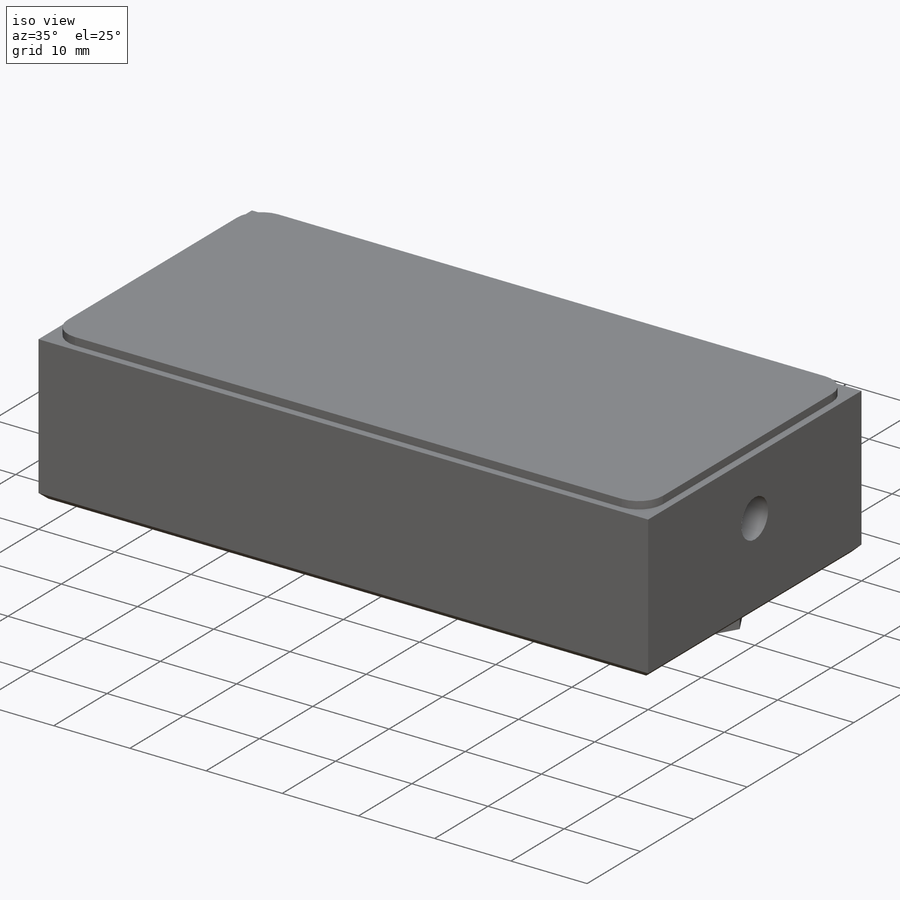
[diagram: iso view]
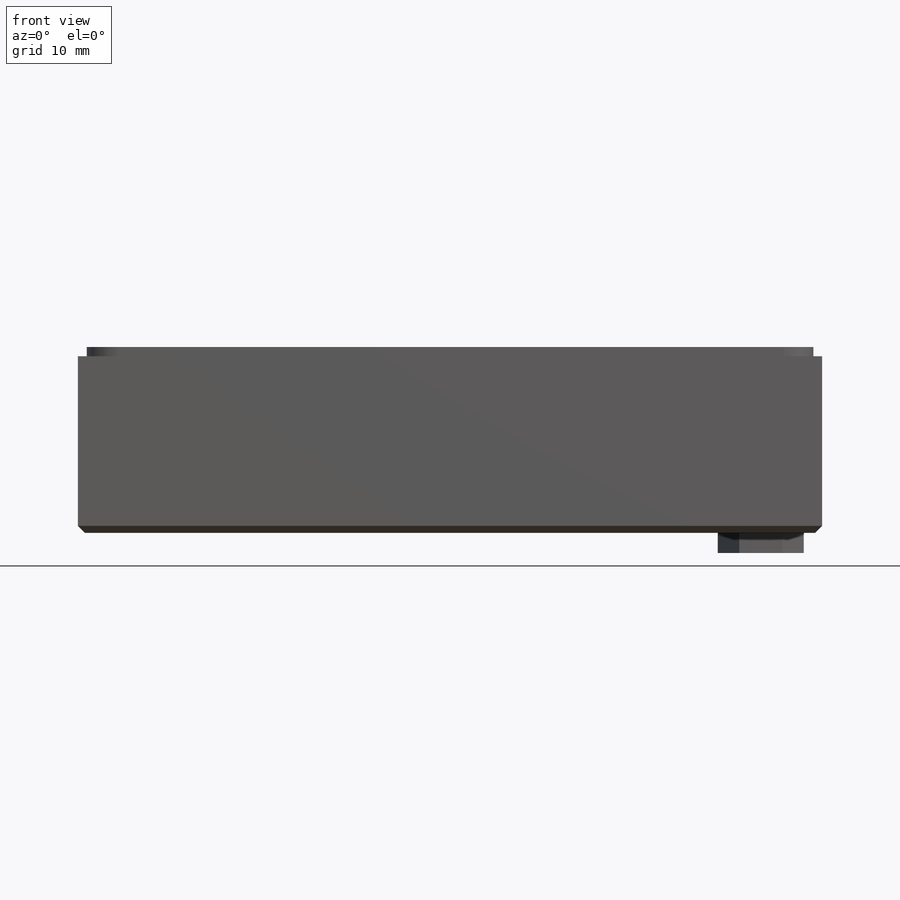
[diagram: front view]
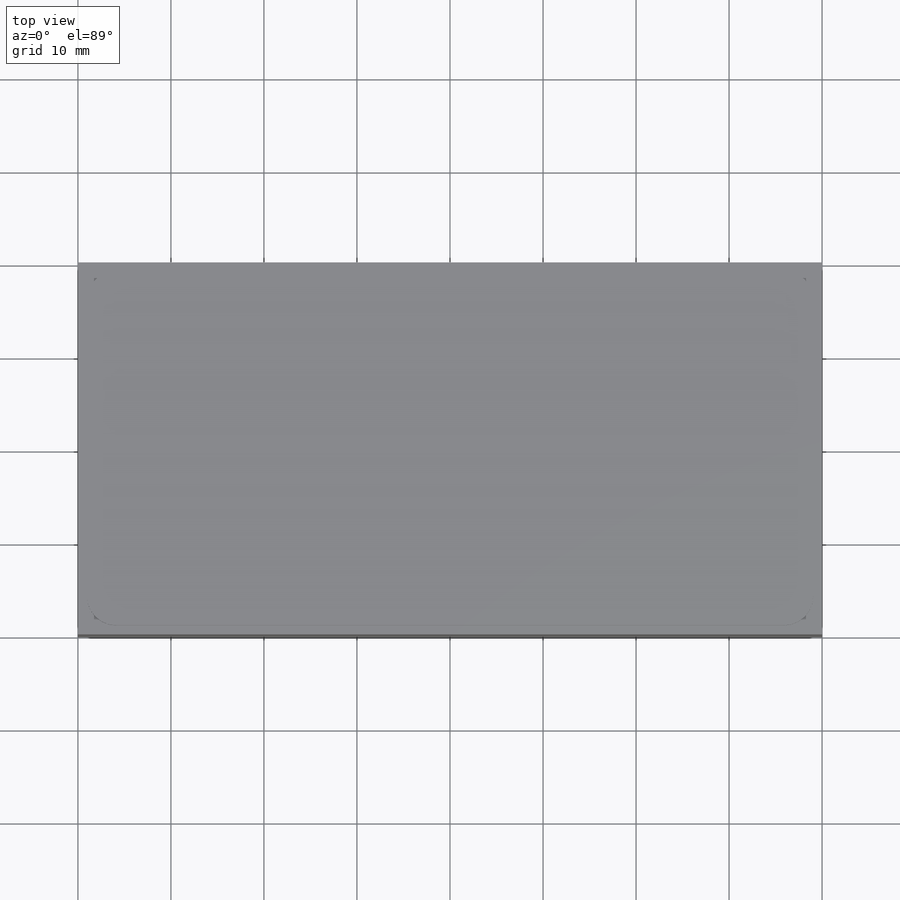
[diagram: top view]
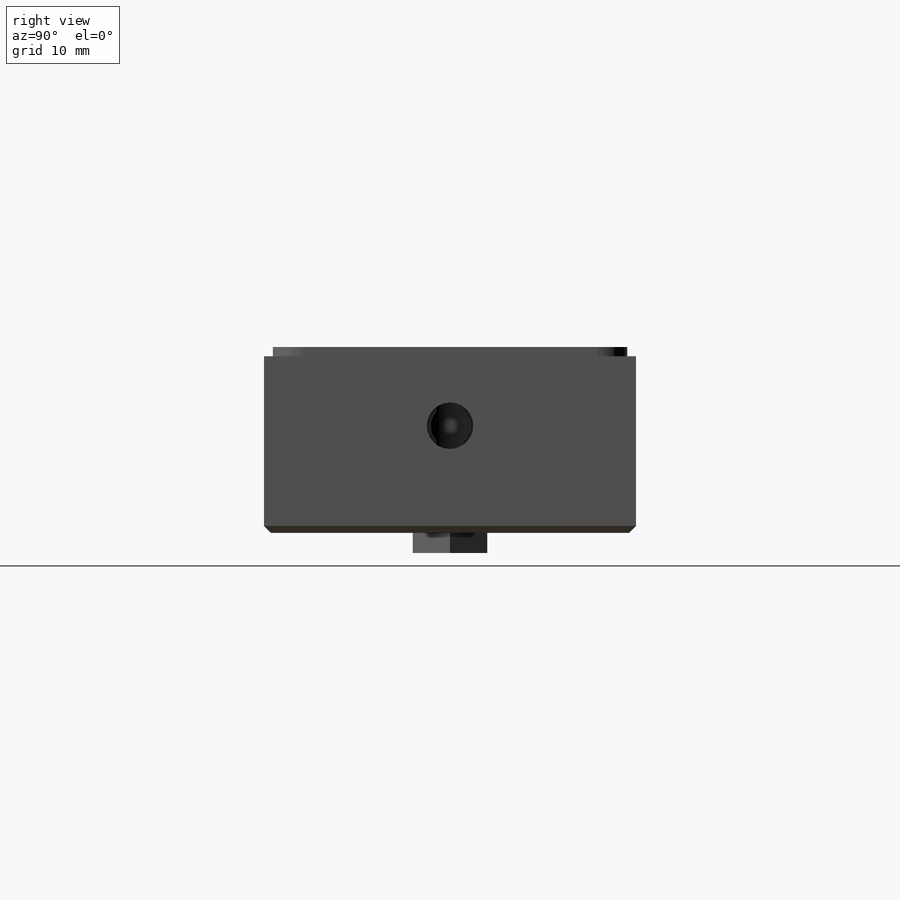
[diagram: right view]
SOLIDWORKS PART (.sldprt)
format: sldprt  version: not decoded by parser v0  size: 436,224 bytes
history: native  units: mm
features: sketch x16, hole x6, extrude x3, material x1, plane x1, cut_revolve x1, pattern_circular x1, chamfer x1 (+15 scaffold rows collapsed)
feature tree (45):
  scaffold x15  (default folders/planes/origin — collapsed)
  material  "6061 Alloy"
  sketch  "Sketch1"  dims[D1=80.0mm D2=40.0mm]
  extrude  "Extrude1"  Depth=18.9992mm
  sketch  "Sketch2"  dims[D5=3.175mm D1=38.1mm D2=78.105mm D3=0.9525mm D4=0.9525mm]
  hole  "1/8 (0.125) Diameter Hole1"  Diameter=3.175mm Depth=6.35mm
  sketch  "Sketch5"  dims[c1.D1=20.0152mm c1.D2=19.9898mm c2.D1=60.0mm]
  sketch  "Sketch4"  dims[hole-wizard template sketch: 47 standard entries collapsed; hole parameters kept: c15.Hole Depth=6.35mm c15.D3=~14.816244mm c15.Drill Angle=118.0deg]
  hole  "M3x0.5 Tapped Hole1"  Diameter=2.5mm Depth=8.849995mm
  sketch  "Sketch7"  dims[D1=20.0mm]
  sketch  "Sketch6"  dims[hole-wizard template sketch: 29 standard entries collapsed; hole parameters kept: c8.Tap Drill Depth=~8.849995mm c8.Thread Major Dia.=3.0mm c8.Thread Depth=6.35mm c8.D5=~14.816244mm c8.Drill Angle=118.0deg]
  hole  "M5x0.8 Tapped Hole1"  Diameter=4.2mm Depth=18.9992mm
  sketch  "Sketch9"  dims[D1=6.6mm]
  sketch  "Sketch8"  dims[hole-wizard template sketch: 41 standard entries collapsed; hole parameters kept: c12.Thru Tap Drill Dia.=4.2mm c12.Thru Tap Drill Depth=18.9992mm c12.Thread Major Dia.=5.0mm c12.Thread Depth=5.08mm]
  hole  "3/16 (0.1875) Diameter Hole1"  Diameter=4.7625mm Depth=6.2484mm
  sketch  "Sketch11"
  sketch  "Sketch10"  dims[hole-wizard template sketch: 47 standard entries collapsed; hole parameters kept: c15.Hole Depth=6.2484mm c15.D3=~14.816244mm c15.Drill Angle=180.0deg]
  plane  "Plane1"  Offset=0.508mm
  sketch  "Sketch12"  dims[D1=13.0048mm]
  cut_revolve  "Cut-Revolve1"  Angle=180deg
  hole  "M5x0.8 Tapped Hole2"  Diameter=4.2mm Depth=4.5mm
  sketch  "2"  dims[D1=11.5062mm]
  sketch  "3"  dims[hole-wizard template sketch: 41 standard entries collapsed; hole parameters kept: c12.Thru Tap Drill Dia.=4.2mm c12.Thru Tap Drill Depth=4.5mm c12.Thread Major Dia.=5.0mm c12.Thread Depth=5.08mm]
  hole  "M3x0.5 Tapped Hole2"  Diameter=2.5mm Depth=8.849995mm
  sketch  "Sketch16"  dims[D1=10.795mm]
  sketch  "Sketch15"  dims[hole-wizard template sketch: 29 standard entries collapsed; hole parameters kept: c8.Tap Drill Depth=~8.849995mm c8.Thread Major Dia.=3.0mm c8.Thread Depth=6.35mm c8.D5=~14.816244mm c8.Drill Angle=118.0deg]
  pattern_circular  "CirPattern1"  Count=3 Angle=360deg
  chamfer  "Chamfer1"  Distance=0.762mm Angle=45deg
  extrude  "Extrude2"  Depth=0.9906mm
  sketch  "Sketch17"  dims[D1=8.007mm D2=4.6228mm]
  extrude  "Extrude3"  Depth=2.159mm
decode coverage: 27 of 28 modeling features carry decoded parameters
note: ~ marks probable driven/reference dimensions
summary: Diameter pulled from absorbed wizard sketch
note: suppression state not decoded; provenance and decode notes live in map.json
